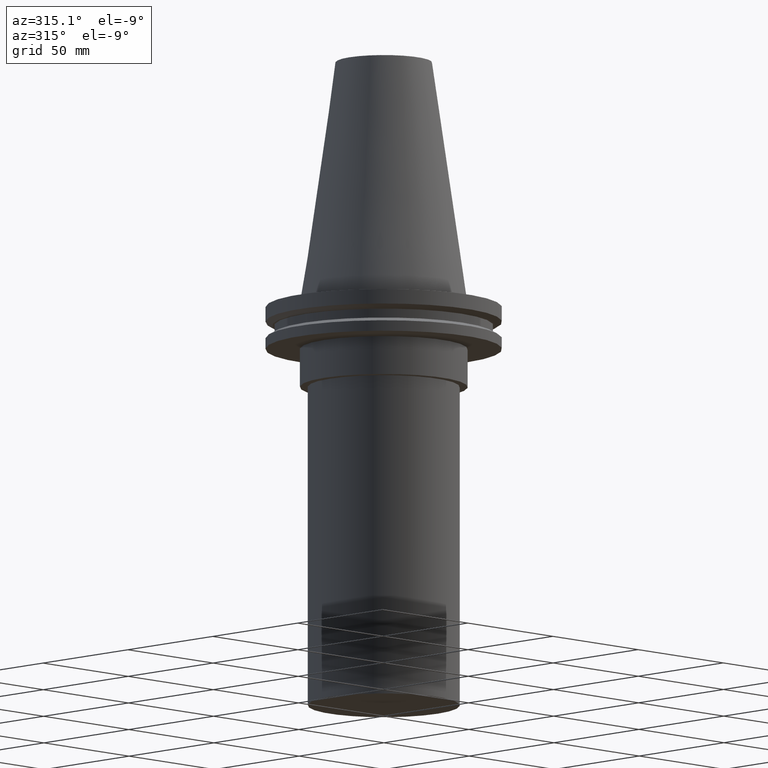
[diagram: clean part render]
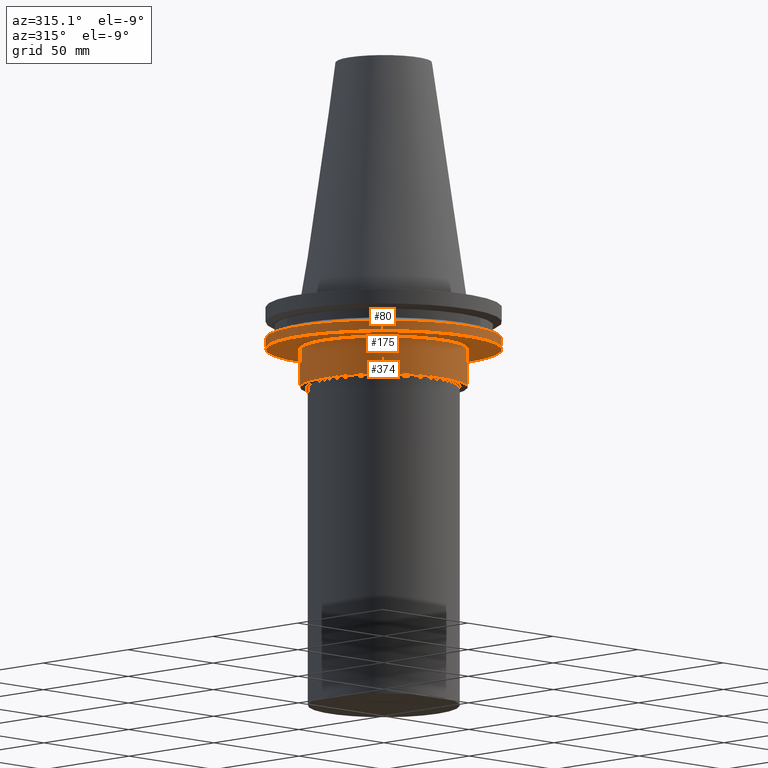
[diagram: same view with one multi-face feature highlighted, each face labeled with its STEP entity id]
A machine part, auxiliary view. The highlighted faces form ONE feature: a stepped (counterbored) hole: 2 coaxial cylindrical walls of radii 34.925 -> 49.215 mm joined by 1 annular planar shoulder face(s). The faces share edges in the B-rep.
Their STEP definitions:
[1] entity #80 (Cylinder):
#18 = EDGE_LOOP ( 'NONE', ( #329 ) ) ;
#23 = CARTESIAN_POINT ( 'NONE',  ( 0.000000000000000000, 0.000000000000000000, -19.04999999999999716 ) ) ;
#24 = DIRECTION ( 'NONE',  ( 1.000000000000000000, 0.000000000000000000, 0.000000000000000000 ) ) ;
#32 = EDGE_CURVE ( 'NONE', #121, #121, #102, .T. ) ;
#38 = AXIS2_PLACEMENT_3D ( 'NONE', #23, #89, #279 ) ;
#41 = DIRECTION ( 'NONE',  ( 1.000000000000000000, 0.000000000000000000, 0.000000000000000000 ) ) ;
#55 = CARTESIAN_POINT ( 'NONE',  ( 49.21499999999998920, 0.000000000000000000, -14.65761014474876944 ) ) ;
#80 = ADVANCED_FACE ( 'NONE', ( #216, #87 ), #280, .T. ) ;
#87 = FACE_OUTER_BOUND ( 'NONE', #220, .T. ) ;
#89 = DIRECTION ( 'NONE',  ( -0.000000000000000000, -0.000000000000000000, 1.000000000000000000 ) ) ;
#92 = CARTESIAN_POINT ( 'NONE',  ( 0.000000000000000000, 0.000000000000000000, 101.5999999999999943 ) ) ;
#95 = CARTESIAN_POINT ( 'NONE',  ( 49.21499999999998920, 0.000000000000000000, -19.04999999999999716 ) ) ;
#102 = CIRCLE ( 'NONE', #269, 49.21499999999998920 ) ;
#106 = AXIS2_PLACEMENT_3D ( 'NONE', #92, #286, #41 ) ;
#121 = VERTEX_POINT ( 'NONE', #55 ) ;
#150 = ORIENTED_EDGE ( 'NONE', *, *, #283, .T. ) ;
#174 = DIRECTION ( 'NONE',  ( -0.000000000000000000, -0.000000000000000000, 1.000000000000000000 ) ) ;
#216 = FACE_OUTER_BOUND ( 'NONE', #18, .T. ) ;
#220 = EDGE_LOOP ( 'NONE', ( #150 ) ) ;
#257 = VERTEX_POINT ( 'NONE', #95 ) ;
#263 = CARTESIAN_POINT ( 'NONE',  ( 0.000000000000000000, 0.000000000000000000, -14.65761014474876944 ) ) ;
#269 = AXIS2_PLACEMENT_3D ( 'NONE', #263, #174, #24 ) ;
#279 = DIRECTION ( 'NONE',  ( 1.000000000000000000, 0.000000000000000000, 0.000000000000000000 ) ) ;
#280 = CYLINDRICAL_SURFACE ( 'NONE', #106, 49.21499999999998920 ) ;
#283 = EDGE_CURVE ( 'NONE', #257, #257, #293, .T. ) ;
#286 = DIRECTION ( 'NONE',  ( -0.000000000000000000, -0.000000000000000000, 1.000000000000000000 ) ) ;
#293 = CIRCLE ( 'NONE', #38, 49.21499999999998920 ) ;
#329 = ORIENTED_EDGE ( 'NONE', *, *, #32, .F. ) ;
[2] entity #374 (Cylinder):
#1 = CARTESIAN_POINT ( 'NONE',  ( 34.92499999999999716, 0.000000000000000000, -19.04999999999999716 ) ) ;
#2 = EDGE_CURVE ( 'NONE', #276, #276, #79, .T. ) ;
#27 = FACE_OUTER_BOUND ( 'NONE', #229, .T. ) ;
#31 = DIRECTION ( 'NONE',  ( 1.000000000000000000, 0.000000000000000000, 0.000000000000000000 ) ) ;
#34 = AXIS2_PLACEMENT_3D ( 'NONE', #322, #290, #320 ) ;
#65 = DIRECTION ( 'NONE',  ( -0.000000000000000000, -0.000000000000000000, 1.000000000000000000 ) ) ;
#79 = CIRCLE ( 'NONE', #34, 34.92499999999999716 ) ;
#100 = EDGE_CURVE ( 'NONE', #249, #249, #260, .T. ) ;
#128 = CARTESIAN_POINT ( 'NONE',  ( 34.92499999999999716, 0.000000000000000000, -35.00000000000000000 ) ) ;
#156 = AXIS2_PLACEMENT_3D ( 'NONE', #305, #363, #31 ) ;
#157 = FACE_OUTER_BOUND ( 'NONE', #298, .T. ) ;
#171 = DIRECTION ( 'NONE',  ( 1.000000000000000000, 0.000000000000000000, 0.000000000000000000 ) ) ;
#225 = CARTESIAN_POINT ( 'NONE',  ( 0.000000000000000000, 0.000000000000000000, -35.00000000000000000 ) ) ;
#229 = EDGE_LOOP ( 'NONE', ( #372 ) ) ;
#249 = VERTEX_POINT ( 'NONE', #128 ) ;
#260 = CIRCLE ( 'NONE', #378, 34.92499999999999716 ) ;
#276 = VERTEX_POINT ( 'NONE', #1 ) ;
#290 = DIRECTION ( 'NONE',  ( -0.000000000000000000, -0.000000000000000000, 1.000000000000000000 ) ) ;
#298 = EDGE_LOOP ( 'NONE', ( #391 ) ) ;
#305 = CARTESIAN_POINT ( 'NONE',  ( 0.000000000000000000, 0.000000000000000000, 101.5999999999999943 ) ) ;
#320 = DIRECTION ( 'NONE',  ( 1.000000000000000000, 0.000000000000000000, 0.000000000000000000 ) ) ;
#322 = CARTESIAN_POINT ( 'NONE',  ( 0.000000000000000000, 0.000000000000000000, -19.04999999999999716 ) ) ;
#363 = DIRECTION ( 'NONE',  ( -0.000000000000000000, -0.000000000000000000, 1.000000000000000000 ) ) ;
#364 = CYLINDRICAL_SURFACE ( 'NONE', #156, 34.92499999999999716 ) ;
#372 = ORIENTED_EDGE ( 'NONE', *, *, #2, .F. ) ;
#374 = ADVANCED_FACE ( 'NONE', ( #27, #157 ), #364, .T. ) ;
#378 = AXIS2_PLACEMENT_3D ( 'NONE', #225, #65, #171 ) ;
#391 = ORIENTED_EDGE ( 'NONE', *, *, #100, .T. ) ;
[3] entity #175 (Plane):
#1 = CARTESIAN_POINT ( 'NONE',  ( 34.92499999999999716, 0.000000000000000000, -19.04999999999999716 ) ) ;
#2 = EDGE_CURVE ( 'NONE', #276, #276, #79, .T. ) ;
#16 = PLANE ( 'NONE',  #90 ) ;
#23 = CARTESIAN_POINT ( 'NONE',  ( 0.000000000000000000, 0.000000000000000000, -19.04999999999999716 ) ) ;
#34 = AXIS2_PLACEMENT_3D ( 'NONE', #322, #290, #320 ) ;
#38 = AXIS2_PLACEMENT_3D ( 'NONE', #23, #89, #279 ) ;
#43 = DIRECTION ( 'NONE',  ( 0.000000000000000000, -0.000000000000000000, 1.000000000000000000 ) ) ;
#72 = EDGE_LOOP ( 'NONE', ( #316 ) ) ;
#78 = EDGE_LOOP ( 'NONE', ( #357 ) ) ;
#79 = CIRCLE ( 'NONE', #34, 34.92499999999999716 ) ;
#89 = DIRECTION ( 'NONE',  ( -0.000000000000000000, -0.000000000000000000, 1.000000000000000000 ) ) ;
#90 = AXIS2_PLACEMENT_3D ( 'NONE', #139, #43, #173 ) ;
#95 = CARTESIAN_POINT ( 'NONE',  ( 49.21499999999998920, 0.000000000000000000, -19.04999999999999716 ) ) ;
#139 = CARTESIAN_POINT ( 'NONE',  ( 0.000000000000000000, 49.21499999999998920, -19.04999999999999716 ) ) ;
#173 = DIRECTION ( 'NONE',  ( 1.000000000000000000, 0.000000000000000000, 0.000000000000000000 ) ) ;
#175 = ADVANCED_FACE ( 'NONE', ( #351, #347 ), #16, .F. ) ;
#257 = VERTEX_POINT ( 'NONE', #95 ) ;
#276 = VERTEX_POINT ( 'NONE', #1 ) ;
#279 = DIRECTION ( 'NONE',  ( 1.000000000000000000, 0.000000000000000000, 0.000000000000000000 ) ) ;
#283 = EDGE_CURVE ( 'NONE', #257, #257, #293, .T. ) ;
#290 = DIRECTION ( 'NONE',  ( -0.000000000000000000, -0.000000000000000000, 1.000000000000000000 ) ) ;
#293 = CIRCLE ( 'NONE', #38, 49.21499999999998920 ) ;
#316 = ORIENTED_EDGE ( 'NONE', *, *, #283, .F. ) ;
#320 = DIRECTION ( 'NONE',  ( 1.000000000000000000, 0.000000000000000000, 0.000000000000000000 ) ) ;
#322 = CARTESIAN_POINT ( 'NONE',  ( 0.000000000000000000, 0.000000000000000000, -19.04999999999999716 ) ) ;
#347 = FACE_BOUND ( 'NONE', #78, .T. ) ;
#351 = FACE_OUTER_BOUND ( 'NONE', #72, .T. ) ;
#357 = ORIENTED_EDGE ( 'NONE', *, *, #2, .T. ) ;